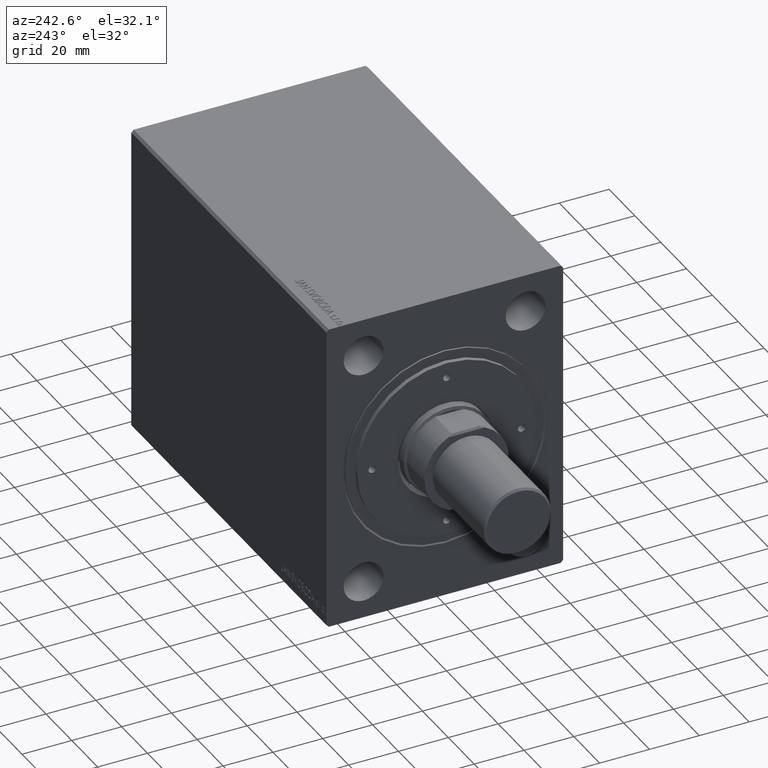
[diagram: clean part render]
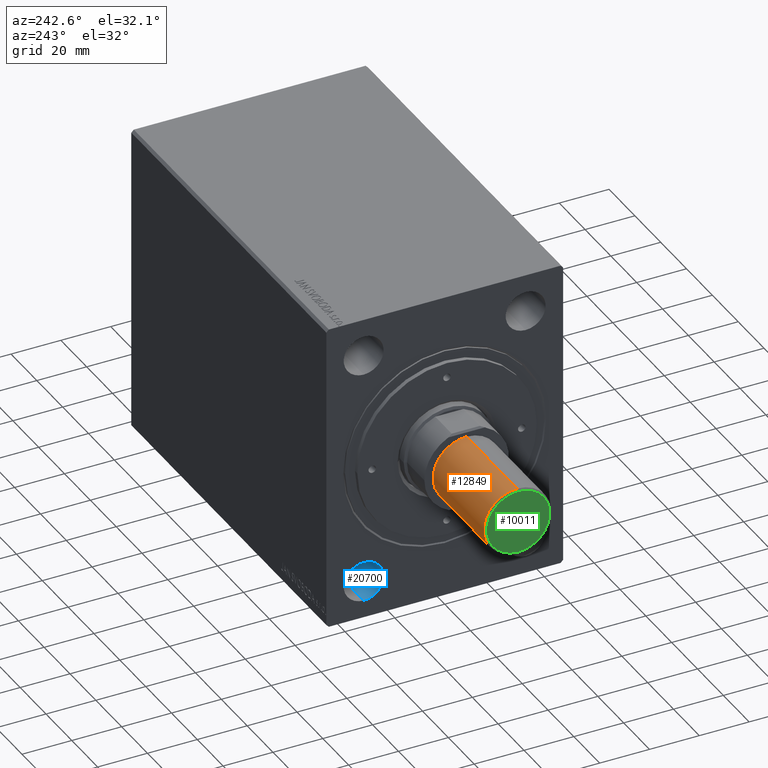
[diagram: same view with three faces highlighted in distinct colors, each labeled with its STEP entity id]
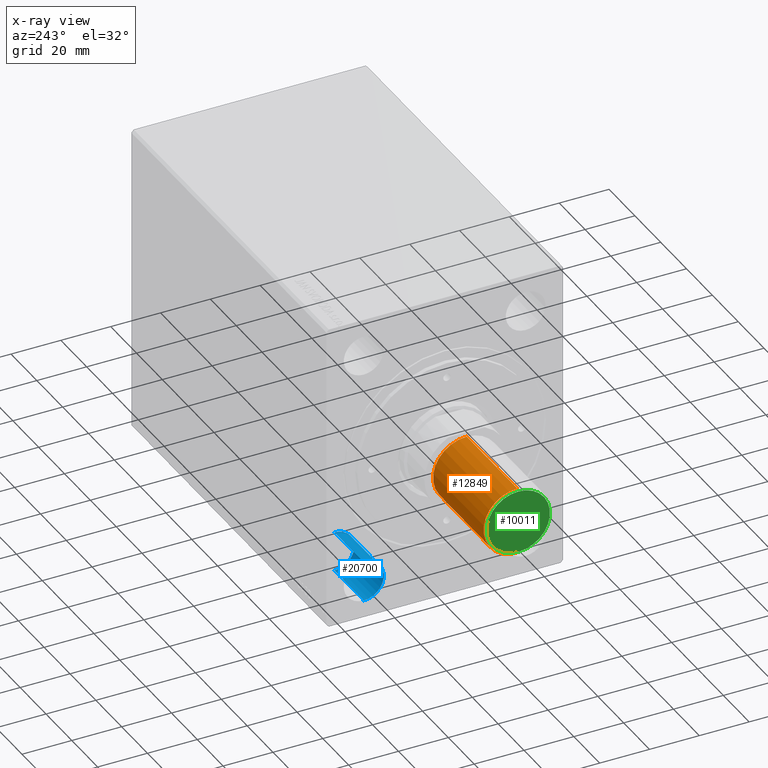
[diagram: x-ray of the same camera — body ghosted, the three highlighted faces saturated]
A machine part, auxiliary view with three faces highlighted in distinct colors.
The next image is the same camera in x-ray (body ghosted, the three faces saturated) — at least one of them is partly hidden behind the body in this view.
Their STEP definitions:

[orange] entity #12849 — the highlighted cylindrical surface (partial cylindrical patch) has radius 13.5 mm, axis along (1, -0, -0).
#2480 = AXIS2_PLACEMENT_3D ( 'NONE', #43241, #15577, #36757 ) ;
#3425 = CARTESIAN_POINT ( 'NONE',  ( 13.50000000000000000, 0.000000000000000000, -39.19999999999998153 ) ) ;
#4524 = CARTESIAN_POINT ( 'NONE',  ( 0.000000000000000000, 0.000000000000000000, -39.19999999999998153 ) ) ;
#4951 = DIRECTION ( 'NONE',  ( 0.000000000000000000, 0.000000000000000000, 1.000000000000000000 ) ) ;
#6063 = EDGE_CURVE ( 'NONE', #21422, #37027, #15224, .T. ) ;
#7662 = DIRECTION ( 'NONE',  ( -0.000000000000000000, -0.000000000000000000, 1.000000000000000000 ) ) ;
#8267 = EDGE_CURVE ( 'NONE', #27255, #37027, #37988, .T. ) ;
#8756 = ORIENTED_EDGE ( 'NONE', *, *, #6063, .T. ) ;
#10139 = VECTOR ( 'NONE', #4951, 1000.000000000000000 ) ;
#10447 = CARTESIAN_POINT ( 'NONE',  ( -13.50000000000000000, 1.653273178848926867E-15, -39.19999999999998153 ) ) ;
#11003 = DIRECTION ( 'NONE',  ( 1.000000000000000000, 0.000000000000000000, 0.000000000000000000 ) ) ;
#11705 = ORIENTED_EDGE ( 'NONE', *, *, #15999, .F. ) ;
#11729 = CIRCLE ( 'NONE', #34539, 13.50000000000000000 ) ;
#12527 = ORIENTED_EDGE ( 'NONE', *, *, #30459, .T. ) ;
#12849 = ADVANCED_FACE ( 'NONE', ( #33187 ), #29186, .T. ) ;
#14657 = CARTESIAN_POINT ( 'NONE',  ( -13.50000000000000000, 1.653273178848926867E-15, 0.000000000000000000 ) ) ;
#15066 = ORIENTED_EDGE ( 'NONE', *, *, #8267, .F. ) ;
#15224 = LINE ( 'NONE', #41798, #10139 ) ;
#15577 = DIRECTION ( 'NONE',  ( 0.000000000000000000, 0.000000000000000000, 1.000000000000000000 ) ) ;
#15999 = EDGE_CURVE ( 'NONE', #36342, #27255, #37758, .T. ) ;
#17531 = EDGE_LOOP ( 'NONE', ( #12527, #8756, #15066, #11705 ) ) ;
#17647 = DIRECTION ( 'NONE',  ( 0.000000000000000000, 0.000000000000000000, 1.000000000000000000 ) ) ;
#17872 = CARTESIAN_POINT ( 'NONE',  ( 13.50000000000000000, 0.000000000000000000, -40.00000000000000000 ) ) ;
#21028 = CARTESIAN_POINT ( 'NONE',  ( 0.000000000000000000, 0.000000000000000000, 0.000000000000000000 ) ) ;
#21422 = VERTEX_POINT ( 'NONE', #10447 ) ;
#21592 = CARTESIAN_POINT ( 'NONE',  ( 13.50000000000000000, 0.000000000000000000, 0.000000000000000000 ) ) ;
#22664 = VECTOR ( 'NONE', #17647, 1000.000000000000000 ) ;
#27255 = VERTEX_POINT ( 'NONE', #21592 ) ;
#29186 = CYLINDRICAL_SURFACE ( 'NONE', #2480, 13.50000000000000000 ) ;
#30459 = EDGE_CURVE ( 'NONE', #36342, #21422, #11729, .T. ) ;
#31087 = DIRECTION ( 'NONE',  ( 0.000000000000000000, 0.000000000000000000, 1.000000000000000000 ) ) ;
#33187 = FACE_OUTER_BOUND ( 'NONE', #17531, .T. ) ;
#34539 = AXIS2_PLACEMENT_3D ( 'NONE', #4524, #7662, #41148 ) ;
#36342 = VERTEX_POINT ( 'NONE', #3425 ) ;
#36757 = DIRECTION ( 'NONE',  ( 1.000000000000000000, 0.000000000000000000, 0.000000000000000000 ) ) ;
#37027 = VERTEX_POINT ( 'NONE', #14657 ) ;
#37758 = LINE ( 'NONE', #17872, #22664 ) ;
#37988 = CIRCLE ( 'NONE', #41567, 13.50000000000000000 ) ;
#41148 = DIRECTION ( 'NONE',  ( 1.000000000000000000, 0.000000000000000000, 0.000000000000000000 ) ) ;
#41567 = AXIS2_PLACEMENT_3D ( 'NONE', #21028, #31087, #11003 ) ;
#41798 = CARTESIAN_POINT ( 'NONE',  ( -13.50000000000000000, 1.653273178848926867E-15, -40.00000000000000000 ) ) ;
#43241 = CARTESIAN_POINT ( 'NONE',  ( 0.000000000000000000, 0.000000000000000000, -40.00000000000000000 ) ) ;

[blue] entity #20700 — the highlighted cylindrical surface (edge-blend (fillet) strip) has radius 8 mm, axis along (-1, -0, -0).
#344 = DIRECTION ( 'NONE',  ( 0.000000000000000000, 0.000000000000000000, 1.000000000000000000 ) ) ;
#426 = VECTOR ( 'NONE', #12207, 1000.000000000000000 ) ;
#1576 = DIRECTION ( 'NONE',  ( -1.000000000000000000, -0.000000000000000000, -0.000000000000000000 ) ) ;
#3470 = AXIS2_PLACEMENT_3D ( 'NONE', #5538, #43043, #24263 ) ;
#5538 = CARTESIAN_POINT ( 'NONE',  ( 0.000000000000000000, 32.50000000000000000, -47.50000000000000000 ) ) ;
#7495 = EDGE_CURVE ( 'NONE', #34130, #28133, #36560, .T. ) ;
#11150 = ORIENTED_EDGE ( 'NONE', *, *, #35597, .F. ) ;
#12207 = DIRECTION ( 'NONE',  ( -1.000000000000000000, -0.000000000000000000, -0.000000000000000000 ) ) ;
#13827 = CARTESIAN_POINT ( 'NONE',  ( 22.67000000000000171, 32.50000000000000000, -55.49999999999999289 ) ) ;
#15462 = AXIS2_PLACEMENT_3D ( 'NONE', #18334, #1576, #28824 ) ;
#15606 = CARTESIAN_POINT ( 'NONE',  ( 0.000000000000000000, 32.50000000000000000, -55.49999999999999289 ) ) ;
#15814 = DIRECTION ( 'NONE',  ( -1.000000000000000000, -0.000000000000000000, -0.000000000000000000 ) ) ;
#16232 = VERTEX_POINT ( 'NONE', #23190 ) ;
#17306 = CARTESIAN_POINT ( 'NONE',  ( 22.67000000000000171, 32.50000000000000000, -47.50000000000000000 ) ) ;
#18334 = CARTESIAN_POINT ( 'NONE',  ( 4.898587196589409870E-16, 32.50000000000000000, -47.50000000000000000 ) ) ;
#20700 = ADVANCED_FACE ( 'NONE', ( #26953 ), #23594, .F. ) ;
#21327 = DIRECTION ( 'NONE',  ( -1.000000000000000000, -0.000000000000000000, -0.000000000000000000 ) ) ;
#23190 = CARTESIAN_POINT ( 'NONE',  ( 4.898587196589409870E-16, 32.50000000000000000, -39.50000000000000711 ) ) ;
#23594 = CYLINDRICAL_SURFACE ( 'NONE', #3470, 7.999999999999992895 ) ;
#24263 = DIRECTION ( 'NONE',  ( 0.000000000000000000, 0.000000000000000000, 1.000000000000000000 ) ) ;
#25556 = CARTESIAN_POINT ( 'NONE',  ( 22.67000000000000171, 32.50000000000000000, -39.50000000000000711 ) ) ;
#25790 = EDGE_LOOP ( 'NONE', ( #34224, #33880, #35472, #11150 ) ) ;
#26953 = FACE_OUTER_BOUND ( 'NONE', #25790, .T. ) ;
#28133 = VERTEX_POINT ( 'NONE', #38491 ) ;
#28171 = CIRCLE ( 'NONE', #39566, 7.999999999999992895 ) ;
#28824 = DIRECTION ( 'NONE',  ( 0.000000000000000000, 0.000000000000000000, 1.000000000000000000 ) ) ;
#29159 = LINE ( 'NONE', #42781, #426 ) ;
#31870 = CIRCLE ( 'NONE', #15462, 7.999999999999992895 ) ;
#32010 = EDGE_CURVE ( 'NONE', #34130, #32080, #28171, .T. ) ;
#32080 = VERTEX_POINT ( 'NONE', #25556 ) ;
#33880 = ORIENTED_EDGE ( 'NONE', *, *, #7495, .T. ) ;
#34130 = VERTEX_POINT ( 'NONE', #13827 ) ;
#34224 = ORIENTED_EDGE ( 'NONE', *, *, #32010, .F. ) ;
#35472 = ORIENTED_EDGE ( 'NONE', *, *, #35761, .T. ) ;
#35597 = EDGE_CURVE ( 'NONE', #32080, #16232, #29159, .T. ) ;
#35761 = EDGE_CURVE ( 'NONE', #28133, #16232, #31870, .T. ) ;
#36560 = LINE ( 'NONE', #15606, #36585 ) ;
#36585 = VECTOR ( 'NONE', #15814, 1000.000000000000000 ) ;
#38491 = CARTESIAN_POINT ( 'NONE',  ( 4.898587196589409870E-16, 32.50000000000000000, -55.49999999999999289 ) ) ;
#39566 = AXIS2_PLACEMENT_3D ( 'NONE', #17306, #21327, #344 ) ;
#42781 = CARTESIAN_POINT ( 'NONE',  ( 0.000000000000000000, 32.50000000000000000, -39.50000000000000711 ) ) ;
#43043 = DIRECTION ( 'NONE',  ( -1.000000000000000000, -0.000000000000000000, -0.000000000000000000 ) ) ;

[green] entity #10011 — the highlighted planar face has unit normal (1, -0, -0).
#2204 = DIRECTION ( 'NONE',  ( 0.000000000000000000, 0.000000000000000000, 1.000000000000000000 ) ) ;
#3232 = CIRCLE ( 'NONE', #25327, 12.69999999999998685 ) ;
#5780 = CARTESIAN_POINT ( 'NONE',  ( 0.000000000000000000, 0.000000000000000000, -40.00000000000000000 ) ) ;
#10011 = ADVANCED_FACE ( 'NONE', ( #32808 ), #22296, .F. ) ;
#10102 = DIRECTION ( 'NONE',  ( 1.000000000000000000, 0.000000000000000000, 0.000000000000000000 ) ) ;
#11792 = VERTEX_POINT ( 'NONE', #30891 ) ;
#12052 = AXIS2_PLACEMENT_3D ( 'NONE', #14126, #27728, #10102 ) ;
#12194 = ORIENTED_EDGE ( 'NONE', *, *, #21279, .T. ) ;
#14126 = CARTESIAN_POINT ( 'NONE',  ( 0.000000000000000000, 0.000000000000000000, -40.00000000000000000 ) ) ;
#15735 = CARTESIAN_POINT ( 'NONE',  ( 0.000000000000000000, 0.000000000000000000, -40.00000000000000000 ) ) ;
#15970 = AXIS2_PLACEMENT_3D ( 'NONE', #5780, #2204, #19385 ) ;
#16918 = ORIENTED_EDGE ( 'NONE', *, *, #32222, .T. ) ;
#19385 = DIRECTION ( 'NONE',  ( 1.000000000000000000, 0.000000000000000000, -0.000000000000000000 ) ) ;
#21279 = EDGE_CURVE ( 'NONE', #11792, #42614, #36283, .T. ) ;
#22296 = PLANE ( 'NONE',  #15970 ) ;
#23573 = EDGE_LOOP ( 'NONE', ( #12194, #16918 ) ) ;
#25327 = AXIS2_PLACEMENT_3D ( 'NONE', #15735, #40050, #32915 ) ;
#27728 = DIRECTION ( 'NONE',  ( -0.000000000000000000, -0.000000000000000000, -1.000000000000000000 ) ) ;
#28165 = CARTESIAN_POINT ( 'NONE',  ( -12.69999999999998685, 1.604287306883032058E-15, -40.00000000000000000 ) ) ;
#30891 = CARTESIAN_POINT ( 'NONE',  ( 12.69999999999998685, 0.000000000000000000, -40.00000000000000000 ) ) ;
#32222 = EDGE_CURVE ( 'NONE', #42614, #11792, #3232, .T. ) ;
#32808 = FACE_OUTER_BOUND ( 'NONE', #23573, .T. ) ;
#32915 = DIRECTION ( 'NONE',  ( 1.000000000000000000, 0.000000000000000000, 0.000000000000000000 ) ) ;
#36283 = CIRCLE ( 'NONE', #12052, 12.69999999999998685 ) ;
#40050 = DIRECTION ( 'NONE',  ( -0.000000000000000000, -0.000000000000000000, -1.000000000000000000 ) ) ;
#42614 = VERTEX_POINT ( 'NONE', #28165 ) ;